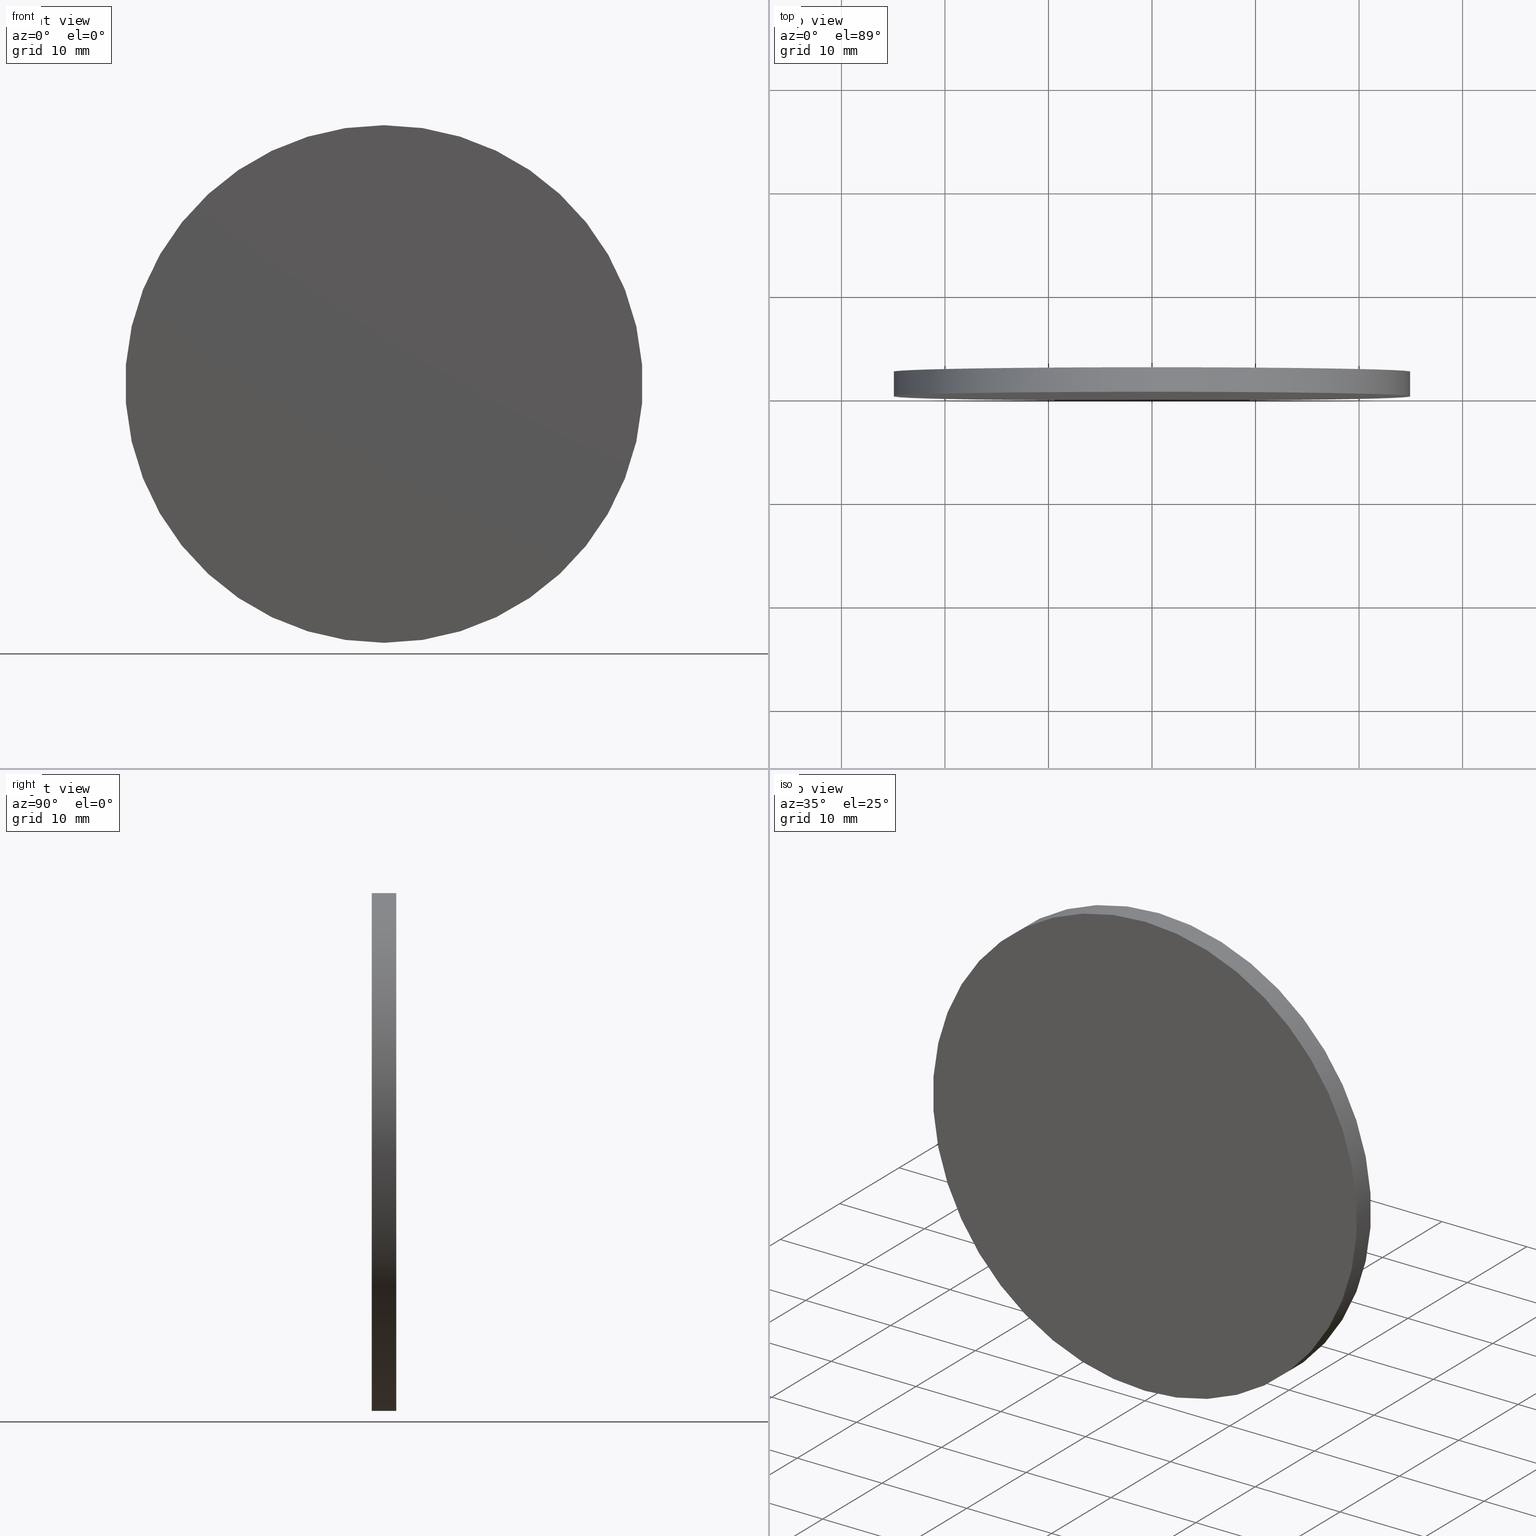
[diagram: canonical four-view strip — front | top / right | iso, engineering-drawing reading convention]
A machine part, canonical four-view strip (front | top / right | iso — engineering-drawing reading convention). The complete STEP part file that produces these views, byte-faithful:
ISO-10303-21;
HEADER;
FILE_DESCRIPTION (( 'STEP AP214' ),
    '1' );
FILE_NAME ('248595.STEP',
    '2019-08-06T05:15:51',
    ( 'user' ),
    ( '΢���й�' ),
    'SwSTEP 2.0',
    'SolidWorks 2016',
    '' );
FILE_SCHEMA (( 'AUTOMOTIVE_DESIGN' ));
ENDSEC;

DATA;
#1 = PRODUCT_CONTEXT ( 'NONE', #27, 'mechanical' ) ;
#2 = AXIS2_PLACEMENT_3D ( 'NONE', #129, #16, #10 ) ;
#3 = UNCERTAINTY_MEASURE_WITH_UNIT (LENGTH_MEASURE( 1.000000000000000100E-005 ), #78, 'distance_accuracy_value', 'NONE');
#4 = CIRCLE ( 'NONE', #9, 25.00000000000000000 ) ;
#5 = APPLICATION_PROTOCOL_DEFINITION ( 'draft international standard', 'automotive_design', 1998, #92 ) ;
#6 = EDGE_CURVE ( 'NONE', #49, #83, #42, .T. ) ;
#7 = SURFACE_STYLE_USAGE ( .BOTH. , #8 ) ;
#8 = SURFACE_SIDE_STYLE ('',( #126 ) ) ;
#9 = AXIS2_PLACEMENT_3D ( 'NONE', #19, #20, #25 ) ;
#10 = DIRECTION ( 'NONE',  ( 0.0000000000000000000, -0.0000000000000000000, 1.000000000000000000 ) ) ;
#11 = EDGE_LOOP ( 'NONE', ( #88, #82, #51, #55 ) ) ;
#12 = PRODUCT_DEFINITION_SHAPE ( 'NONE', 'NONE',  #13 ) ;
#13 = PRODUCT_DEFINITION ( 'δ֪', '', #101, #131 ) ;
#14 =( GEOMETRIC_REPRESENTATION_CONTEXT ( 3 ) GLOBAL_UNCERTAINTY_ASSIGNED_CONTEXT ( ( #3 ) ) GLOBAL_UNIT_ASSIGNED_CONTEXT ( ( #78, #76, #75 ) ) REPRESENTATION_CONTEXT ( 'NONE', 'WORKASPACE' ) );
#15 = FILL_AREA_STYLE ('',( #24 ) ) ;
#16 = DIRECTION ( 'NONE',  ( 0.0000000000000000000, 1.000000000000000000, 0.0000000000000000000 ) ) ;
#17 = DIRECTION ( 'NONE',  ( 0.0000000000000000000, 0.0000000000000000000, -1.000000000000000000 ) ) ;
#18 = DIRECTION ( 'NONE',  ( 0.0000000000000000000, 0.0000000000000000000, 1.000000000000000000 ) ) ;
#19 = CARTESIAN_POINT ( 'NONE',  ( 0.0000000000000000000, 0.0000000000000000000, 0.0000000000000000000 ) ) ;
#20 = DIRECTION ( 'NONE',  ( 0.0000000000000000000, 1.000000000000000000, 0.0000000000000000000 ) ) ;
#21 = COLOUR_RGB ( '',1.000000000000000000, 1.000000000000000000, 1.000000000000000000 ) ;
#22 = PRODUCT ( '248595', '248595', '', ( #1 ) ) ;
#23 = ORIENTED_EDGE ( 'NONE', *, *, #6, .F. ) ;
#24 = FILL_AREA_STYLE_COLOUR ( '', #57 ) ;
#25 = DIRECTION ( 'NONE',  ( 0.0000000000000000000, 0.0000000000000000000, 1.000000000000000000 ) ) ;
#26 = PRESENTATION_LAYER_ASSIGNMENT (  '', '', ( #121 ) ) ;
#27 = APPLICATION_CONTEXT ( 'automotive_design' ) ;
#28 = AXIS2_PLACEMENT_3D ( 'NONE', #97, #134, #132 ) ;
#29 = APPLICATION_PROTOCOL_DEFINITION ( 'draft international standard', 'automotive_design', 1998, #27 ) ;
#30 = ORIENTED_EDGE ( 'NONE', *, *, #98, .T. ) ;
#31 = PRODUCT_RELATED_PRODUCT_CATEGORY ( 'part', '', ( #22 ) ) ;
#32 = FACE_OUTER_BOUND ( 'NONE', #80, .T. ) ;
#33 = CLOSED_SHELL ( 'NONE', ( #89, #77, #64, #65 ) ) ;
#34 = AXIS2_PLACEMENT_3D ( 'NONE', #139, #133, #137 ) ;
#35 = CYLINDRICAL_SURFACE ( 'NONE', #34, 25.00000000000000000 ) ;
#36 = SHAPE_DEFINITION_REPRESENTATION ( #12, #96 ) ;
#37 = ORIENTED_EDGE ( 'NONE', *, *, #6, .T. ) ;
#38 =( NAMED_UNIT ( * ) SI_UNIT ( $, .STERADIAN. ) SOLID_ANGLE_UNIT ( ) );
#39 =( NAMED_UNIT ( * ) PLANE_ANGLE_UNIT ( ) SI_UNIT ( $, .RADIAN. ) );
#40 = AXIS2_PLACEMENT_3D ( 'NONE', #110, #130, #17 ) ;
#41 = VECTOR ( 'NONE', #53, 1000.000000000000000 ) ;
#42 = CIRCLE ( 'NONE', #48, 25.00000000000000000 ) ;
#43 =( LENGTH_UNIT ( ) NAMED_UNIT ( * ) SI_UNIT ( .MILLI., .METRE. ) );
#44 = AXIS2_PLACEMENT_3D ( 'NONE', #67, #66, #125 ) ;
#45 = VERTEX_POINT ( 'NONE', #71 ) ;
#46 = STYLED_ITEM ( 'NONE', ( #50 ), #99 ) ;
#47 = DIRECTION ( 'NONE',  ( 0.0000000000000000000, 1.000000000000000000, 0.0000000000000000000 ) ) ;
#48 = AXIS2_PLACEMENT_3D ( 'NONE', #111, #47, #18 ) ;
#49 = VERTEX_POINT ( 'NONE', #91 ) ;
#50 = PRESENTATION_STYLE_ASSIGNMENT (( #52 ) ) ;
#51 = ORIENTED_EDGE ( 'NONE', *, *, #114, .T. ) ;
#52 = SURFACE_STYLE_USAGE ( .BOTH. , #81 ) ;
#53 = DIRECTION ( 'NONE',  ( -0.0000000000000000000, -1.000000000000000000, -0.0000000000000000000 ) ) ;
#54 = CARTESIAN_POINT ( 'NONE',  ( 3.061616997868383000E-015, 2.370000000000000100, 25.00000000000000000 ) ) ;
#55 = ORIENTED_EDGE ( 'NONE', *, *, #86, .F. ) ;
#56 = DIRECTION ( 'NONE',  ( 0.0000000000000000000, 0.0000000000000000000, 1.000000000000000000 ) ) ;
#57 = COLOUR_RGB ( '',1.000000000000000000, 1.000000000000000000, 1.000000000000000000 ) ;
#58 = DIRECTION ( 'NONE',  ( 0.0000000000000000000, 1.000000000000000000, 0.0000000000000000000 ) ) ;
#59 = CARTESIAN_POINT ( 'NONE',  ( 0.0000000000000000000, 0.0000000000000000000, 0.0000000000000000000 ) ) ;
#60 = UNCERTAINTY_MEASURE_WITH_UNIT (LENGTH_MEASURE( 1.000000000000000100E-005 ), #43, 'distance_accuracy_value', 'NONE');
#61 = ORIENTED_EDGE ( 'NONE', *, *, #70, .F. ) ;
#62 = MECHANICAL_DESIGN_GEOMETRIC_PRESENTATION_REPRESENTATION (  '', ( #46 ), #14 ) ;
#63 = ORIENTED_EDGE ( 'NONE', *, *, #114, .F. ) ;
#64 = ADVANCED_FACE ( 'NONE', ( #73 ), #90, .T. ) ;
#65 = ADVANCED_FACE ( 'NONE', ( #109 ), #107, .F. ) ;
#66 = DIRECTION ( 'NONE',  ( 0.0000000000000000000, 0.0000000000000000000, 1.000000000000000000 ) ) ;
#67 = CARTESIAN_POINT ( 'NONE',  ( 0.0000000000000000000, 0.0000000000000000000, 0.0000000000000000000 ) ) ;
#68 = CARTESIAN_POINT ( 'NONE',  ( 0.0000000000000000000, 2.370000000000000100, -25.00000000000000000 ) ) ;
#69 = CARTESIAN_POINT ( 'NONE',  ( 3.061616997868383000E-015, 0.0000000000000000000, 25.00000000000000000 ) ) ;
#70 = EDGE_CURVE ( 'NONE', #45, #128, #4, .T. ) ;
#71 = CARTESIAN_POINT ( 'NONE',  ( 0.0000000000000000000, 0.0000000000000000000, -25.00000000000000000 ) ) ;
#72 = FILL_AREA_STYLE_COLOUR ( '', #21 ) ;
#73 = FACE_OUTER_BOUND ( 'NONE', #124, .T. ) ;
#74 = UNCERTAINTY_MEASURE_WITH_UNIT (LENGTH_MEASURE( 1.000000000000000100E-005 ), #119, 'distance_accuracy_value', 'NONE');
#75 =( NAMED_UNIT ( * ) SI_UNIT ( $, .STERADIAN. ) SOLID_ANGLE_UNIT ( ) );
#76 =( NAMED_UNIT ( * ) PLANE_ANGLE_UNIT ( ) SI_UNIT ( $, .RADIAN. ) );
#77 = ADVANCED_FACE ( 'NONE', ( #32 ), #138, .T. ) ;
#78 =( LENGTH_UNIT ( ) NAMED_UNIT ( * ) SI_UNIT ( .MILLI., .METRE. ) );
#79 = CARTESIAN_POINT ( 'NONE',  ( 3.061616997868383000E-015, 2.370000000000000100, 25.00000000000000000 ) ) ;
#80 = EDGE_LOOP ( 'NONE', ( #94, #23, #118, #100 ) ) ;
#81 = SURFACE_SIDE_STYLE ('',( #106 ) ) ;
#82 = ORIENTED_EDGE ( 'NONE', *, *, #140, .T. ) ;
#83 = VERTEX_POINT ( 'NONE', #54 ) ;
#84 = PRESENTATION_STYLE_ASSIGNMENT (( #7 ) ) ;
#85 = LINE ( 'NONE', #79, #41 ) ;
#86 = EDGE_CURVE ( 'NONE', #49, #45, #87, .T. ) ;
#87 = LINE ( 'NONE', #68, #102 ) ;
#88 = ORIENTED_EDGE ( 'NONE', *, *, #98, .F. ) ;
#89 = ADVANCED_FACE ( 'NONE', ( #112 ), #35, .T. ) ;
#90 = PLANE ( 'NONE',  #2 ) ;
#91 = CARTESIAN_POINT ( 'NONE',  ( 0.0000000000000000000, 2.370000000000000100, -25.00000000000000000 ) ) ;
#92 = APPLICATION_CONTEXT ( 'automotive_design' ) ;
#93 = CIRCLE ( 'NONE', #136, 25.00000000000000000 ) ;
#94 = ORIENTED_EDGE ( 'NONE', *, *, #140, .F. ) ;
#95 =( NAMED_UNIT ( * ) SI_UNIT ( $, .STERADIAN. ) SOLID_ANGLE_UNIT ( ) );
#96 = ADVANCED_BREP_SHAPE_REPRESENTATION ( '248595', ( #99, #44 ), #135 ) ;
#97 = CARTESIAN_POINT ( 'NONE',  ( 0.0000000000000000000, 0.0000000000000000000, 0.0000000000000000000 ) ) ;
#98 = EDGE_CURVE ( 'NONE', #83, #49, #93, .T. ) ;
#99 = MANIFOLD_SOLID_BREP ( '͹̨-����1', #33 ) ;
#100 = ORIENTED_EDGE ( 'NONE', *, *, #70, .T. ) ;
#101 = PRODUCT_DEFINITION_FORMATION_WITH_SPECIFIED_SOURCE ( '�κ�', '', #22, .NOT_KNOWN. ) ;
#102 = VECTOR ( 'NONE', #120, 1000.000000000000000 ) ;
#103 = DIRECTION ( 'NONE',  ( 0.0000000000000000000, 0.0000000000000000000, 1.000000000000000000 ) ) ;
#104 = DIRECTION ( 'NONE',  ( 0.0000000000000000000, 1.000000000000000000, 0.0000000000000000000 ) ) ;
#105 = CARTESIAN_POINT ( 'NONE',  ( 0.0000000000000000000, 2.370000000000000100, 0.0000000000000000000 ) ) ;
#106 = SURFACE_STYLE_FILL_AREA ( #108 ) ;
#107 = PLANE ( 'NONE',  #28 ) ;
#108 = FILL_AREA_STYLE ('',( #72 ) ) ;
#109 = FACE_OUTER_BOUND ( 'NONE', #122, .T. ) ;
#110 = CARTESIAN_POINT ( 'NONE',  ( 0.0000000000000000000, 2.370000000000000100, 0.0000000000000000000 ) ) ;
#111 = CARTESIAN_POINT ( 'NONE',  ( 0.0000000000000000000, 2.370000000000000100, 0.0000000000000000000 ) ) ;
#112 = FACE_OUTER_BOUND ( 'NONE', #11, .T. ) ;
#113 = CIRCLE ( 'NONE', #123, 25.00000000000000000 ) ;
#114 = EDGE_CURVE ( 'NONE', #128, #45, #113, .T. ) ;
#115 = MECHANICAL_DESIGN_GEOMETRIC_PRESENTATION_REPRESENTATION (  '', ( #121 ), #127 ) ;
#116 = PRESENTATION_LAYER_ASSIGNMENT (  '', '', ( #46 ) ) ;
#117 =( NAMED_UNIT ( * ) PLANE_ANGLE_UNIT ( ) SI_UNIT ( $, .RADIAN. ) );
#118 = ORIENTED_EDGE ( 'NONE', *, *, #86, .T. ) ;
#119 =( LENGTH_UNIT ( ) NAMED_UNIT ( * ) SI_UNIT ( .MILLI., .METRE. ) );
#120 = DIRECTION ( 'NONE',  ( -0.0000000000000000000, -1.000000000000000000, -0.0000000000000000000 ) ) ;
#121 = STYLED_ITEM ( 'NONE', ( #84 ), #96 ) ;
#122 = EDGE_LOOP ( 'NONE', ( #61, #63 ) ) ;
#123 = AXIS2_PLACEMENT_3D ( 'NONE', #59, #58, #56 ) ;
#124 = EDGE_LOOP ( 'NONE', ( #37, #30 ) ) ;
#125 = DIRECTION ( 'NONE',  ( 1.000000000000000000, 0.0000000000000000000, 0.0000000000000000000 ) ) ;
#126 = SURFACE_STYLE_FILL_AREA ( #15 ) ;
#127 =( GEOMETRIC_REPRESENTATION_CONTEXT ( 3 ) GLOBAL_UNCERTAINTY_ASSIGNED_CONTEXT ( ( #74 ) ) GLOBAL_UNIT_ASSIGNED_CONTEXT ( ( #119, #117, #95 ) ) REPRESENTATION_CONTEXT ( 'NONE', 'WORKASPACE' ) );
#128 = VERTEX_POINT ( 'NONE', #69 ) ;
#129 = CARTESIAN_POINT ( 'NONE',  ( 0.0000000000000000000, 2.370000000000000100, 0.0000000000000000000 ) ) ;
#130 = DIRECTION ( 'NONE',  ( -0.0000000000000000000, -1.000000000000000000, -0.0000000000000000000 ) ) ;
#131 = PRODUCT_DEFINITION_CONTEXT ( 'detailed design', #92, 'design' ) ;
#132 = DIRECTION ( 'NONE',  ( 0.0000000000000000000, -0.0000000000000000000, 1.000000000000000000 ) ) ;
#133 = DIRECTION ( 'NONE',  ( -0.0000000000000000000, -1.000000000000000000, -0.0000000000000000000 ) ) ;
#134 = DIRECTION ( 'NONE',  ( 0.0000000000000000000, 1.000000000000000000, 0.0000000000000000000 ) ) ;
#135 =( GEOMETRIC_REPRESENTATION_CONTEXT ( 3 ) GLOBAL_UNCERTAINTY_ASSIGNED_CONTEXT ( ( #60 ) ) GLOBAL_UNIT_ASSIGNED_CONTEXT ( ( #43, #39, #38 ) ) REPRESENTATION_CONTEXT ( 'NONE', 'WORKASPACE' ) );
#136 = AXIS2_PLACEMENT_3D ( 'NONE', #105, #104, #103 ) ;
#137 = DIRECTION ( 'NONE',  ( 0.0000000000000000000, 0.0000000000000000000, -1.000000000000000000 ) ) ;
#138 = CYLINDRICAL_SURFACE ( 'NONE', #40, 25.00000000000000000 ) ;
#139 = CARTESIAN_POINT ( 'NONE',  ( 0.0000000000000000000, 2.370000000000000100, 0.0000000000000000000 ) ) ;
#140 = EDGE_CURVE ( 'NONE', #83, #128, #85, .T. ) ;
ENDSEC;
END-ISO-10303-21;
